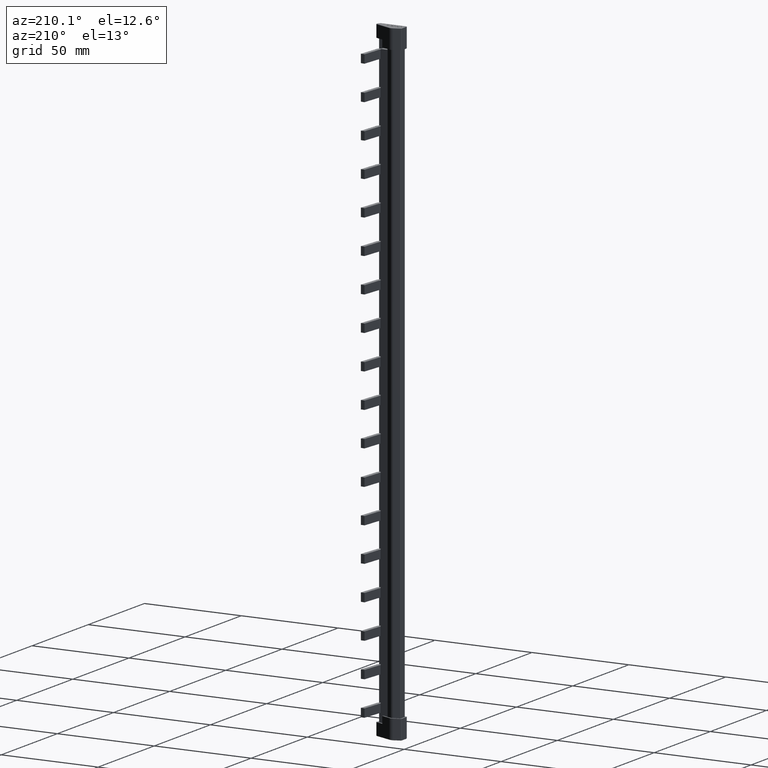
[diagram: clean part render]
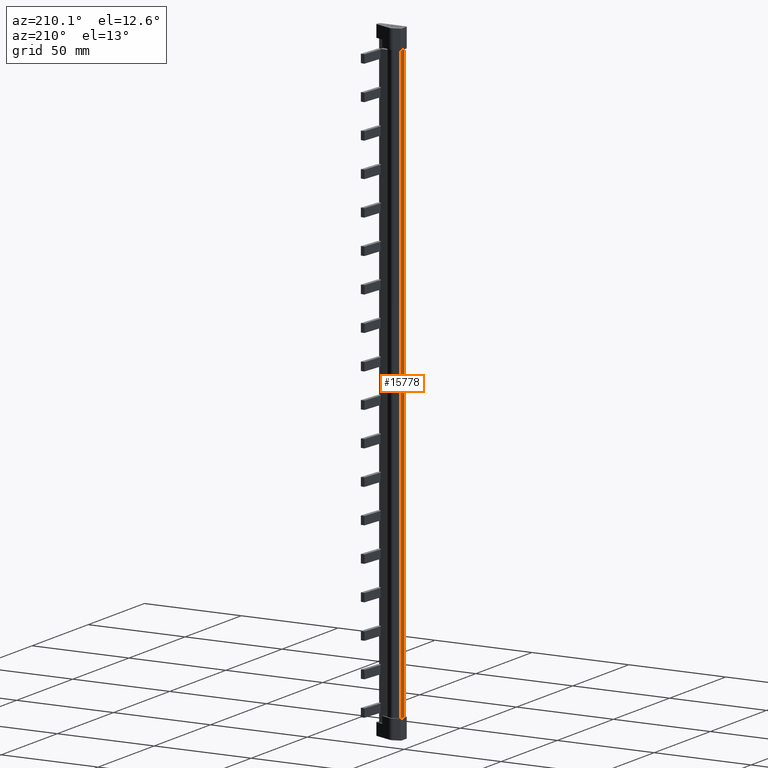
[diagram: same view with one face highlighted and labeled with its STEP entity id]
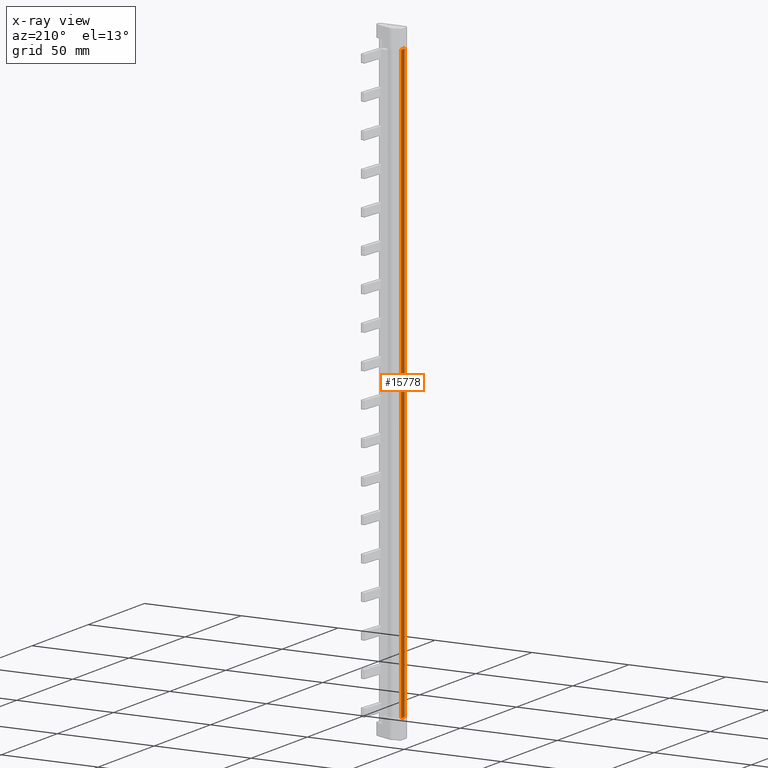
[diagram: x-ray of the same camera — body ghosted, the highlighted face saturated]
A machine part, auxiliary view. The second image highlights one B-rep face of the part: STEP entity #15778.
The next image is the same camera in x-ray: the body ghosted, the highlighted face saturated — about 0% of this face is hidden behind the body in this view.
In plain terms, the highlighted planar face has unit normal (1, 0, -0).
Its self-contained STEP definition (entity closure, byte-faithful):
#312 = EDGE_CURVE ( 'NONE', #26980, #27028, #19425, .T. ) ;
#321 = EDGE_CURVE ( 'NONE', #27062, #26980, #19458, .T. ) ;
#349 = EDGE_CURVE ( 'NONE', #27028, #26998, #19586, .T. ) ;
#354 = EDGE_CURVE ( 'NONE', #26998, #27062, #19546, .T. ) ;
#1439 = VECTOR ( 'NONE', #19419, 1000.000000000000000 ) ;
#1478 = VECTOR ( 'NONE', #19454, 1000.000000000000000 ) ;
#1528 = VECTOR ( 'NONE', #19552, 1000.000000000000000 ) ;
#1544 = VECTOR ( 'NONE', #19560, 1000.000000000000000 ) ;
#4401 = AXIS2_PLACEMENT_3D ( 'NONE', #13332, #13302, #13325 ) ;
#6855 = CARTESIAN_POINT ( 'NONE',  ( -0.4999998368468358500, 3.615511271367030300, -95.90000000000002000 ) ) ;
#6871 = CARTESIAN_POINT ( 'NONE',  ( -0.4999998879606932200, 0.4999999978688941500, 209.9000000000000100 ) ) ;
#6917 = CARTESIAN_POINT ( 'NONE',  ( -0.4999998735868435000, 3.615511274208507200, 209.9000000000000100 ) ) ;
#6943 = CARTESIAN_POINT ( 'NONE',  ( -0.4999998163000224900, 0.4999999992896315100, -95.90000000000002000 ) ) ;
#7785 = ORIENTED_EDGE ( 'NONE', *, *, #321, .F. ) ;
#7846 = ORIENTED_EDGE ( 'NONE', *, *, #312, .F. ) ;
#7848 = ORIENTED_EDGE ( 'NONE', *, *, #349, .F. ) ;
#7854 = ORIENTED_EDGE ( 'NONE', *, *, #354, .F. ) ;
#13302 = DIRECTION ( 'NONE',  ( 1.000000000000000000, 3.563533965728333600E-014, -0.0000000000000000000 ) ) ;
#13325 = DIRECTION ( 'NONE',  ( -3.563533965728333600E-014, 1.000000000000000000, 0.0000000000000000000 ) ) ;
#13331 = PLANE ( 'NONE',  #4401 ) ;
#13332 = CARTESIAN_POINT ( 'NONE',  ( -0.5000000000000559600, 3.615511274208504900, 219.0000000000000000 ) ) ;
#13333 = FACE_OUTER_BOUND ( 'NONE', #26581, .T. ) ;
#15778 = ADVANCED_FACE ( 'NONE', ( #13333 ), #13331, .F. ) ;
#19413 = CARTESIAN_POINT ( 'NONE',  ( -0.5000000000000559600, 3.615511272787768500, 219.0000000000000000 ) ) ;
#19419 = DIRECTION ( 'NONE',  ( 0.0000000000000000000, 0.0000000000000000000, 1.000000000000000000 ) ) ;
#19425 = LINE ( 'NONE', #19413, #1439 ) ;
#19454 = DIRECTION ( 'NONE',  ( 1.522599007603421600E-056, 1.000000000000000000, -3.939912114750718400E-031 ) ) ;
#19458 = LINE ( 'NONE', #19480, #1478 ) ;
#19480 = CARTESIAN_POINT ( 'NONE',  ( -0.4999998530400069900, -5.682891657254884900E-009, -95.90000000000002000 ) ) ;
#19546 = LINE ( 'NONE', #19557, #1528 ) ;
#19548 = CARTESIAN_POINT ( 'NONE',  ( -0.4999999209917975800, -5.682891657254884900E-009, 209.9000000000000100 ) ) ;
#19552 = DIRECTION ( 'NONE',  ( -0.0000000000000000000, -0.0000000000000000000, -1.000000000000000000 ) ) ;
#19557 = CARTESIAN_POINT ( 'NONE',  ( -0.4999999999999449300, 0.5000000000000004400, 219.0000000000000000 ) ) ;
#19560 = DIRECTION ( 'NONE',  ( -1.522599007603421600E-056, -1.000000000000000000, -3.939912114750718400E-031 ) ) ;
#19586 = LINE ( 'NONE', #19548, #1544 ) ;
#26581 = EDGE_LOOP ( 'NONE', ( #7848, #7846, #7785, #7854 ) ) ;
#26980 = VERTEX_POINT ( 'NONE', #6855 ) ;
#26998 = VERTEX_POINT ( 'NONE', #6871 ) ;
#27028 = VERTEX_POINT ( 'NONE', #6917 ) ;
#27062 = VERTEX_POINT ( 'NONE', #6943 ) ;